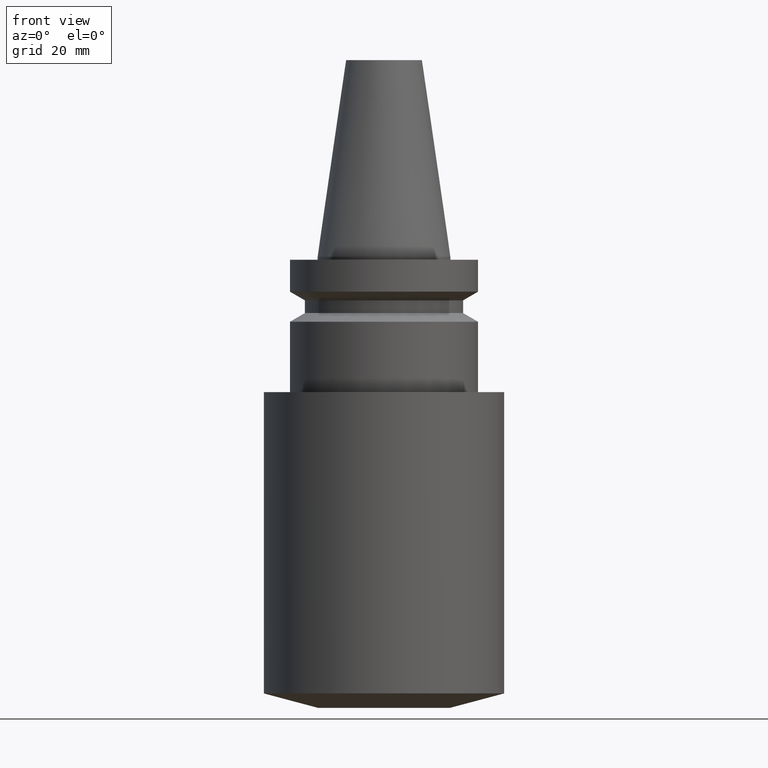
[diagram: clean part render]
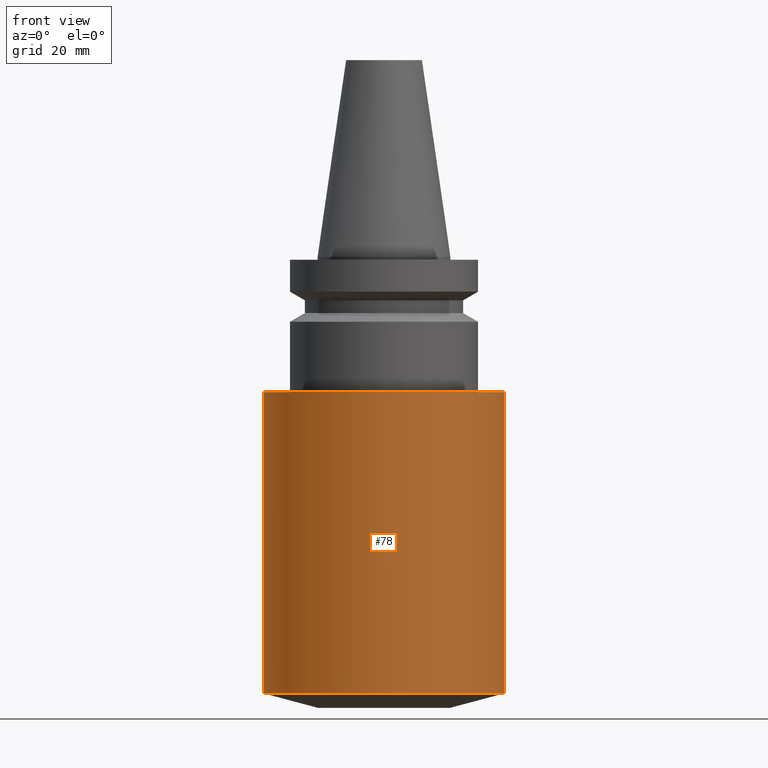
[diagram: same view with one face highlighted and labeled with its STEP entity id]
A machine part, front view. The second image highlights one B-rep face of the part: STEP entity #78.
In plain terms, the highlighted cylindrical surface (bore or boss wall) has radius 40 mm, axis along (-0, -0, 1).
Its self-contained STEP definition (entity closure, byte-faithful):
#78=ADVANCED_FACE('',(#98,#99),#100,.T.);
#98=FACE_BOUND('',#135,.T.);
#99=FACE_BOUND('',#136,.T.);
#100=CYLINDRICAL_SURFACE('',#137,40.0);
#135=EDGE_LOOP('',(#178));
#136=EDGE_LOOP('',(#179));
#137=AXIS2_PLACEMENT_3D('',#180,#181,#182);
#178=ORIENTED_EDGE('',*,*,#230,.F.);
#179=ORIENTED_EDGE('',*,*,#229,.T.);
#180=CARTESIAN_POINT('',(5.82248874136589E-015,1.16449774827318E-014,-95.0884572665316));
#181=DIRECTION('',(-6.12323399573677E-017,-1.22464679914735E-016,1.0));
#182=DIRECTION('',(-1.23259516440783E-032,1.0,1.22464679914735E-016));
#229=EDGE_CURVE('',#244,#244,#245,.T.);
#230=EDGE_CURVE('',#246,#246,#247,.T.);
#244=VERTEX_POINT('',#268);
#245=CIRCLE('',#269,40.0);
#246=VERTEX_POINT('',#270);
#247=CIRCLE('',#271,40.0);
#268=CARTESIAN_POINT('',(2.75545529808154E-015,40.0,-45.0));
#269=AXIS2_PLACEMENT_3D('',#295,#296,#297);
#270=CARTESIAN_POINT('',(8.88952218465024E-015,40.0,-145.176914533063));
#271=AXIS2_PLACEMENT_3D('',#298,#299,#300);
#295=CARTESIAN_POINT('',(2.75545529808154E-015,5.51091059616309E-015,-45.0));
#296=DIRECTION('',(6.12323399573677E-017,1.22464679914735E-016,-1.0));
#297=DIRECTION('',(-1.23259516440783E-032,1.0,1.22464679914735E-016));
#298=CARTESIAN_POINT('',(8.88952218465024E-015,1.77790443693005E-014,-145.176914533063));
#299=DIRECTION('',(6.12323399573677E-017,1.22464679914735E-016,-1.0));
#300=DIRECTION('',(-1.23259516440783E-032,1.0,1.22464679914735E-016));